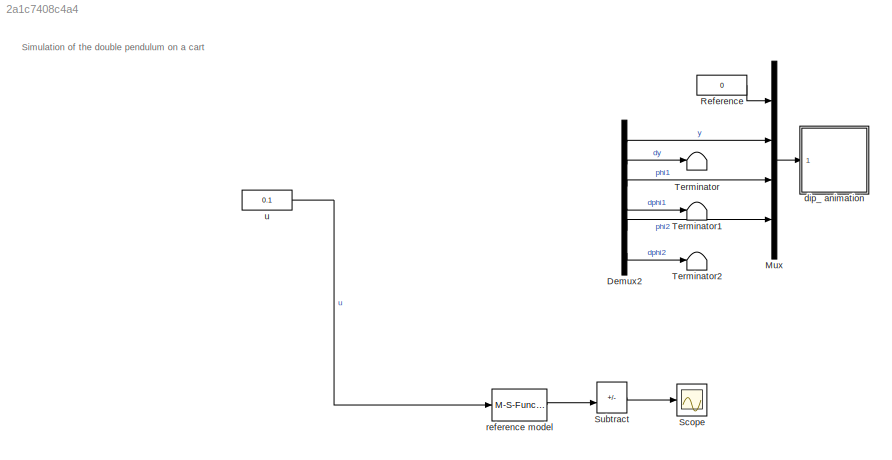
MODEL slx_2a1c7408c4a4
KIND model
CONFIG AbsTol = auto
CONFIG EnableMultiTasking = on
CONFIG FixedStep = 0.01
CONFIG MaxStep = 0.05
CONFIG MinStep = auto
CONFIG RelTol = 1e-3
CONFIG SampleTimeConstraint = Unconstrained
CONFIG Solver = ode45
CONFIG SolverName = ode45
CONFIG StartTime = 0.0
CONFIG StopTime = 10
BLOCK [Demux] Demux2
  Outputs = 6
  Ports = [1, 6]
BLOCK [Mux] Mux
  DisplayOption = bar
  Ports = [4, 1]
BLOCK [Constant] Reference
  Value = 0
BLOCK [Scope] Scope
  Floating = off
  NumInputPorts = 1
  Ports = [1]
  ScopeSpecificationString = Simulink.scopes.TimeScopeBlockCfg('CurrentConfiguration', extmgr.ConfigurationSet(extmgr.Configuration('Core','General UI',true),extmgr.Configuration('Core','Source UI',true),extmgr.Configuration('Sources','WiredSimulink',true),extmgr.Configuration('Visuals','Time Domain',true,'SerializedDisplays',{struct('MinYLimReal','-1.00000','MaxYLimReal','1.00000','YLabelReal','','MinYLimMag','0.00000','MaxY...<+1492ch>
BLOCK [Sum] Subtract
  IconShape = rectangular
  Inputs = +-
  Ports = [2, 1]
BLOCK [Terminator] Terminator
BLOCK [Terminator] Terminator1
BLOCK [Terminator] Terminator2
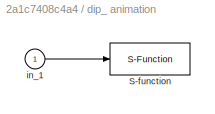
BLOCK [SubSystem] dip_ animation
  Ports = [1]
  RequestExecContextInheritance = off
BLOCK [S-Function] dip_ animation/S-function
  DeleteFcn = pendan([],[],[],'DeleteBlock');
  EnableBusSupport = off
  FunctionName = dip_animation
  Parameters = RefBlock
  Ports = [1]
  SFcnIsStateOwnerBlock = off
  SFunctionDeploymentMode = off
BLOCK [Inport] dip_ animation/in_1
BLOCK [M-S-Function] reference model
  FunctionName = dip_sim_ref
  Parameters = [0;0;0;0;0;0];
  Ports = [1, 1]
BLOCK [Constant] u
  Value = 0.1
ANNOTATION (root): Simulation of the double pendulum on a cart
LINE Demux2:1 -> Mux:2
LINE Demux2:2 -> Terminator:1
LINE Demux2:3 -> Mux:3
LINE Demux2:4 -> Terminator1:1
LINE Demux2:5 -> Mux:4
LINE Demux2:6 -> Terminator2:1
LINE Mux:1 -> dip_ animation:1
LINE Reference:1 -> Mux:1
LINE Subtract:1 -> Scope:1
LINE dip_ animation/in_1:1 -> dip_ animation/S-function:1
LINE reference model:1 -> Subtract:2
LINE u:1 -> reference model:1
